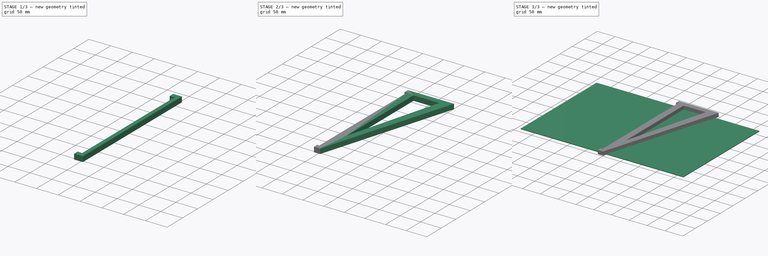
[diagram: build sequence overview — one tinted view per stage of 3, left to right]
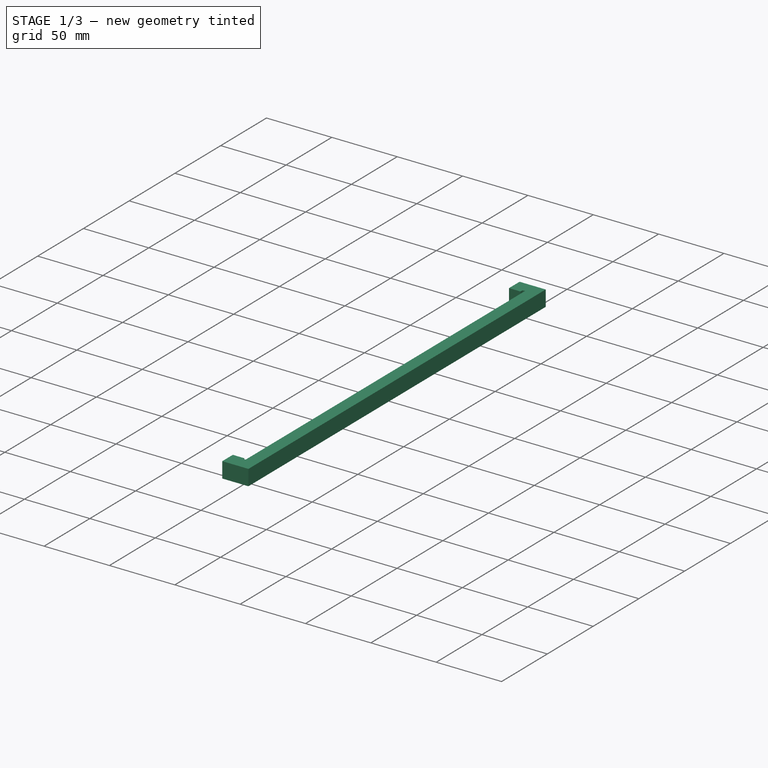
[diagram: stage 1 of 3 — iso view after this stage's code; geometry added in this stage tinted green]
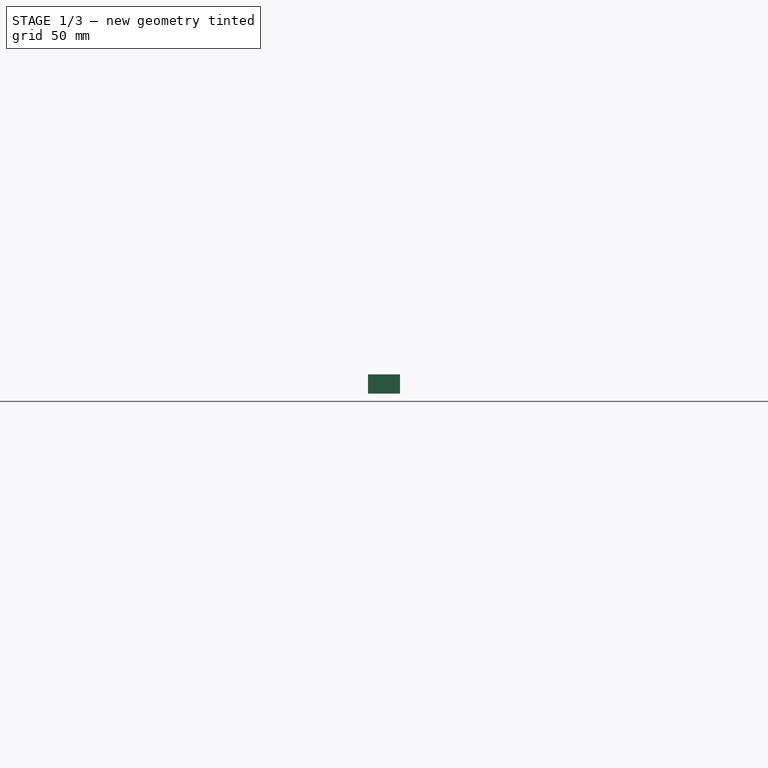
[diagram: stage 1 of 3 — front view after this stage's code; geometry added in this stage tinted green]
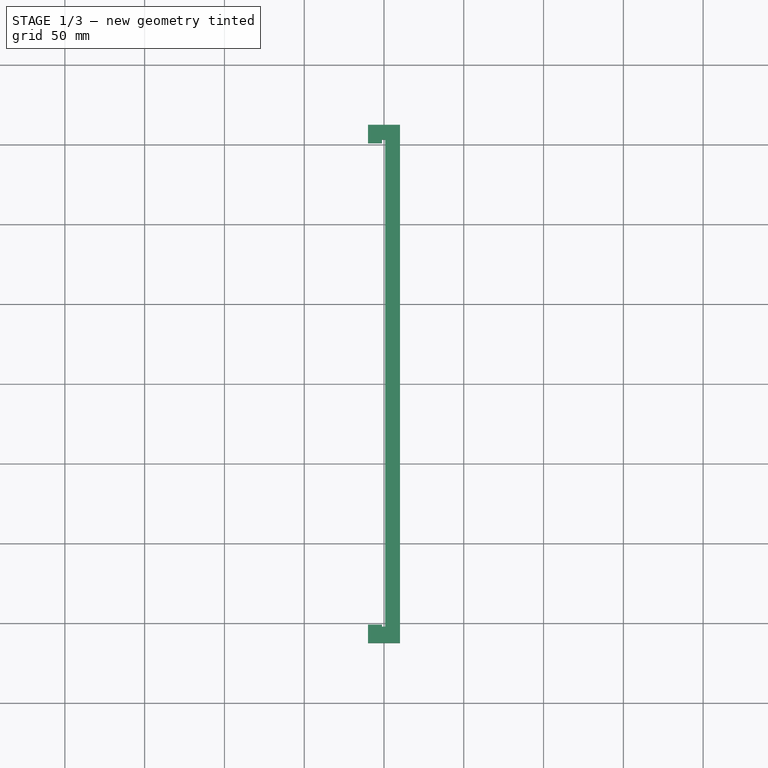
[diagram: stage 1 of 3 — top view after this stage's code; geometry added in this stage tinted green]
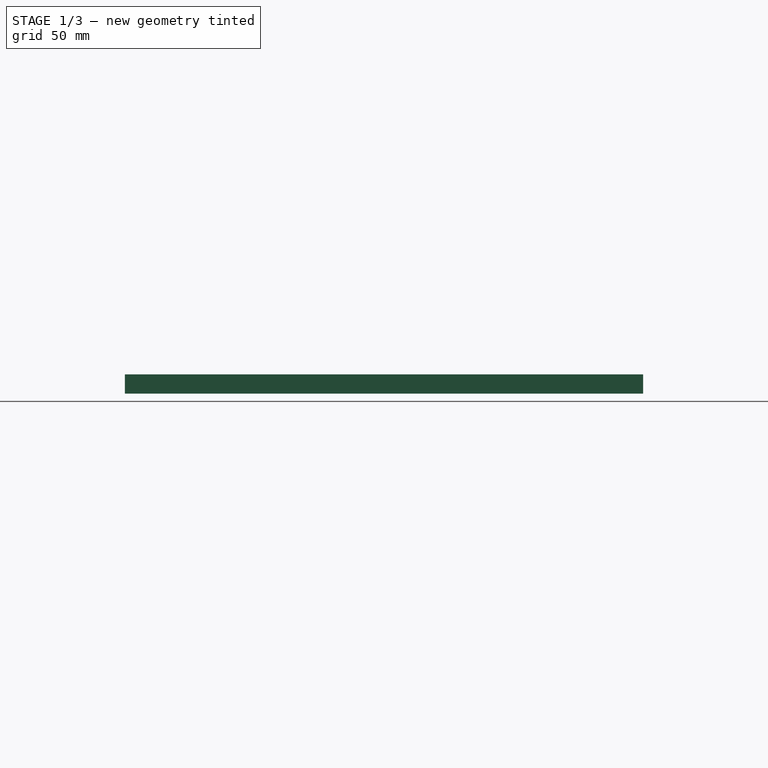
[diagram: stage 1 of 3 — right view after this stage's code; geometry added in this stage tinted green]
FCSTD DOCUMENT  (FreeCAD 1.0R39109 (Git))
Label: cad-support-metal
License: All rights reserved
LicenseURL: https://en.wikipedia.org/wiki/All_rights_reserved
objects: Sketcher::SketchObject×7, PartDesign::Pad×3, PartDesign::Pocket×3, PartDesign::Body×2, Spreadsheet::Sheet×1, PartDesign::Hole×1, PartDesign::Fillet×1
note: 40 computed .brp shape members not serialized (recipe doc carries the construction recipe); baked Part::Feature solids carry a one-line shape summary decoded from their .brp

FEATURE [PartDesign::Body] Body  label="Body-feuillemetal"
  AllowCompound = false
  Group = -> [Sketch,Pad]
  Origin = -> Origin
  Tip = -> Pad
FEATURE [Sketcher::SketchObject] Sketch001
  ArcFitTolerance = 1e-06
  AttachmentSupport = -> [XY_Plane001]
  FullyConstrained = true
  MakeInternals = false
  MapMode = 5
  expr: Constraints[10] = Spreadsheet.support_x
  expr: Constraints[11] = Spreadsheet.support_y
  sketch-geometry (5):
    g0: LineSegment StartX=-10 StartY=-162.4 StartZ=0 EndX=10 EndY=-162.4 EndZ=0
    g1: LineSegment StartX=10 StartY=-162.4 StartZ=0 EndX=10 EndY=162.4 EndZ=0
    g2: LineSegment StartX=10 StartY=162.4 StartZ=0 EndX=-10 EndY=162.4 EndZ=0
    g3: LineSegment StartX=-10 StartY=162.4 StartZ=0 EndX=-10 EndY=-162.4 EndZ=0
    g4: GeomPoint [constr] X=0 Y=0 Z=0
  constraints (12):
    c: Coincident(g0,g1)
    c: Coincident(g1,g2)
    c: Coincident(g2,g3)
    c: Coincident(g3,g0)
    c: Horizontal(g0)
    c: Horizontal(g2)
    c: Vertical(g1)
    c: Vertical(g3)
    c: Symmetric(g2,g0,g4)
    c: Coincident(g4,g-1)
    c: DistanceX(g2,g2) = 20
    c: DistanceY(g3,g3) = 324.8
FEATURE [PartDesign::Pad] Pad001
  Direction = (0,0,1)
  Length = 12
  Length2 = 10
  Profile = -> Sketch001
  ReferenceAxis = -> Sketch001 [N_Axis]
  Refine = true
  Suppressed = false
  Type = 0
  expr: Length = Spreadsheet.support_z_1
FEATURE [Sketcher::SketchObject] Sketch002
  ArcFitTolerance = 1e-06
  AttachmentSupport = -> [XY_Plane001]
  FullyConstrained = false
  MakeInternals = false
  MapMode = 5
  expr: Constraints[10] = Spreadsheet.metal_z + 0.2 mm
  expr: Constraints[9] = Spreadsheet.metal_y + 0.5 mm
  sketch-geometry (5):
    g0: LineSegment StartX=-1.21803 StartY=-152.16 StartZ=0 EndX=0.681973 EndY=-152.16 EndZ=0
    g1: LineSegment StartX=0.681973 StartY=-152.16 StartZ=0 EndX=0.681973 EndY=153.14 EndZ=0
    g2: LineSegment StartX=0.681973 StartY=153.14 StartZ=0 EndX=-1.21803 EndY=153.14 EndZ=0
    g3: LineSegment StartX=-1.21803 StartY=153.14 StartZ=0 EndX=-1.21803 EndY=-152.16 EndZ=0
    g4: GeomPoint [constr] X=-0.268027 Y=0.490328 Z=0
  constraints (11):
    c: Coincident(g0,g1)
    c: Coincident(g1,g2)
    c: Coincident(g2,g3)
    c: Coincident(g3,g0)
    c: Horizontal(g0)
    c: Horizontal(g2)
    c: Vertical(g1)
    c: Vertical(g3)
    c: Symmetric(g2,g0,g4)
    c: DistanceY(g3,g3) = 305.3
    c: DistanceX(g2,g2) = 1.9
FEATURE [PartDesign::Pocket] Pocket
  BaseFeature = -> Pad001
  Direction = (0,0,-1)
  Length = 26
  Length2 = 5
  Midplane = true
  Profile = -> Sketch002
  ReferenceAxis = -> Sketch002 [N_Axis]
  Refine = true
  Suppressed = false
  Type = 0
  expr: Length = Spreadsheet.support_x + 6 mm
FEATURE [Sketcher::SketchObject] Sketch003
  ArcFitTolerance = 1e-06
  AttachmentSupport = -> [YZ_Plane001]
  FullyConstrained = true
  MakeInternals = false
  MapMode = 5
  Placement = pos=(0,0,0) rot=(0.57735,0.57735,0.57735;2.0944rad)
  expr: Constraints[10] = Spreadsheet.metal_y - 3 mm
  expr: Constraints[11] = Spreadsheet.support_x * 2
  sketch-geometry (5):
    g0: LineSegment StartX=-150.9 StartY=-20 StartZ=0 EndX=150.9 EndY=-20 EndZ=0
    g1: LineSegment StartX=150.9 StartY=-20 StartZ=0 EndX=150.9 EndY=20 EndZ=0
    g2: LineSegment StartX=150.9 StartY=20 StartZ=0 EndX=-150.9 EndY=20 EndZ=0
    g3: LineSegment StartX=-150.9 StartY=20 StartZ=0 EndX=-150.9 EndY=-20 EndZ=0
    g4: GeomPoint [constr] X=0 Y=0 Z=0
  constraints (12):
    c: Coincident(g0,g1)
    c: Coincident(g1,g2)
    c: Coincident(g2,g3)
    c: Coincident(g3,g0)
    c: Horizontal(g0)
    c: Horizontal(g2)
    c: Vertical(g1)
    c: Vertical(g3)
    c: Symmetric(g2,g0,g4)
    c: Coincident(g4,g-1)
    c: DistanceX(g2,g2) = 301.8
    c: DistanceY(g3,g3) = 40
FEATURE [PartDesign::Pocket] Pocket001
  BaseFeature = -> Pocket
  Direction = (-1,0,0)
  Length = 17
  Length2 = 5
  Profile = -> Sketch003
  ReferenceAxis = -> Sketch003 [N_Axis]
  Refine = true
  Suppressed = false
  Type = 0
  expr: Length = Spreadsheet.support_z_1 + 5 mm
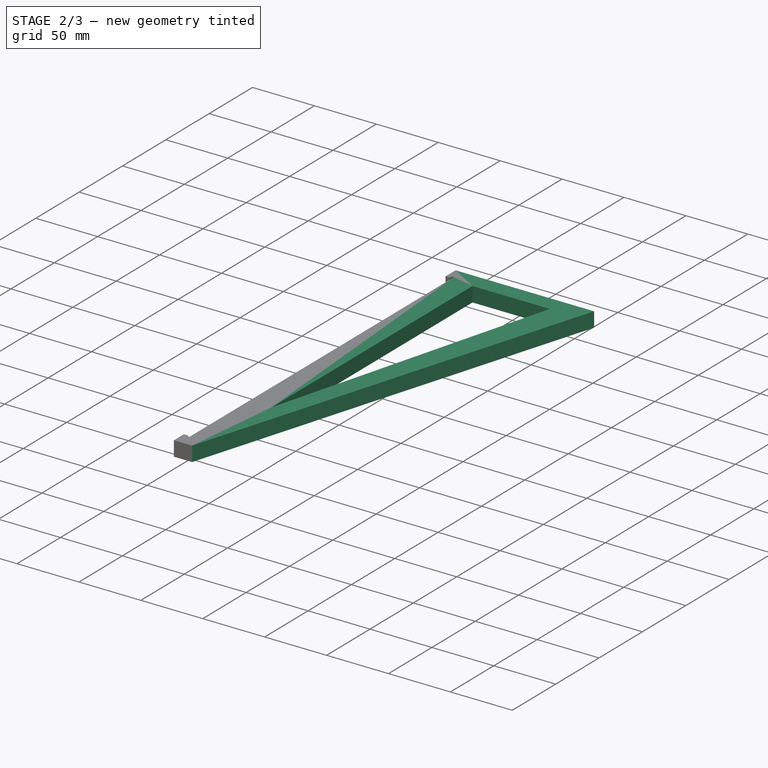
[diagram: stage 2 of 3 — iso view after this stage's code; geometry added in this stage tinted green]
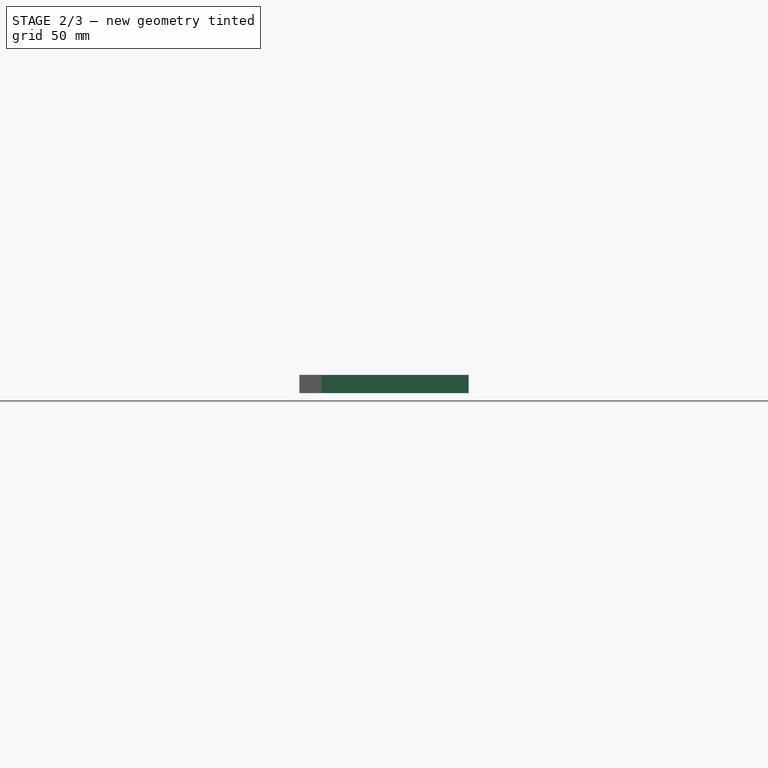
[diagram: stage 2 of 3 — front view after this stage's code; geometry added in this stage tinted green]
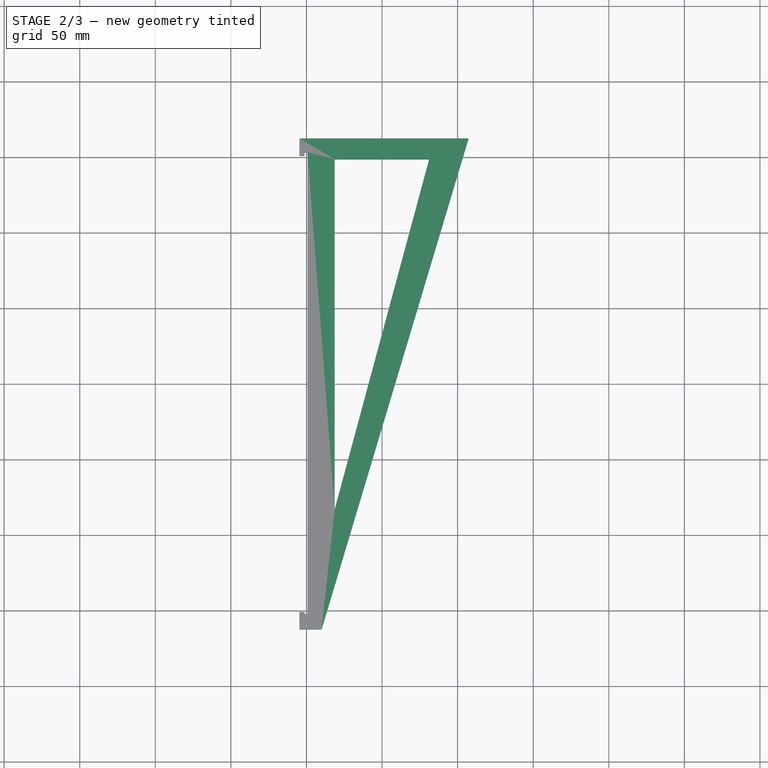
[diagram: stage 2 of 3 — top view after this stage's code; geometry added in this stage tinted green]
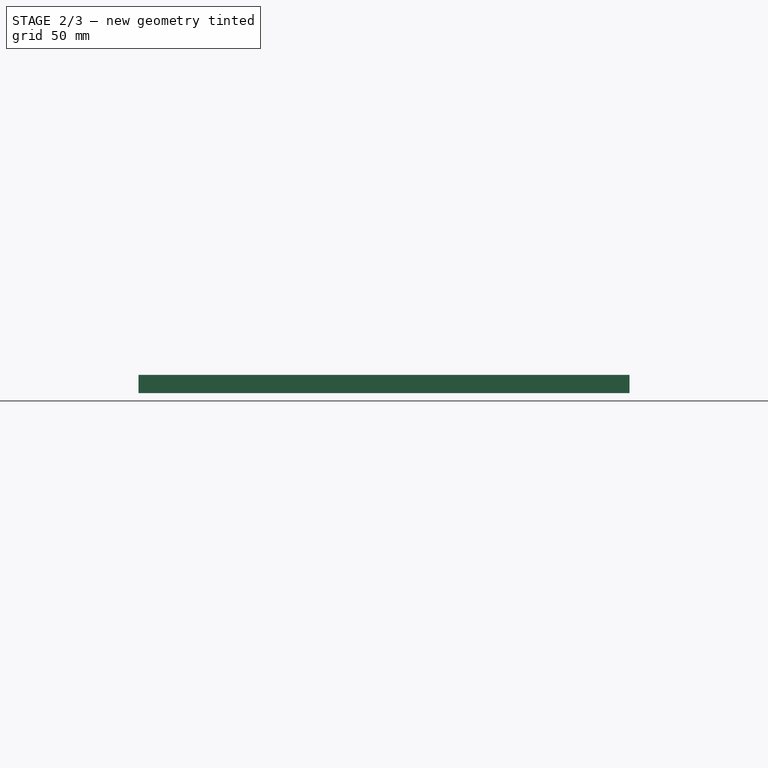
[diagram: stage 2 of 3 — right view after this stage's code; geometry added in this stage tinted green]
FEATURE [Sketcher::SketchObject] Sketch004
  ArcFitTolerance = 1e-06
  AttachmentSupport = -> [XY_Plane001]
  FullyConstrained = false
  MakeInternals = false
  MapMode = 5
  sketch-geometry (5):
    g0: LineSegment StartX=-4.6674 StartY=-176.687 StartZ=0 EndX=-4.6674 EndY=176.687 EndZ=0
    g1: LineSegment StartX=-4.6674 StartY=176.687 StartZ=0 EndX=-16.3256 EndY=176.687 EndZ=0
    g2: LineSegment StartX=-16.3256 StartY=176.687 StartZ=0 EndX=-16.3256 EndY=-176.687 EndZ=0
    g3: LineSegment StartX=-16.3256 StartY=-176.687 StartZ=0 EndX=-4.6674 EndY=-176.687 EndZ=0
    g4: GeomPoint [constr] X=-10.4965 Y=0 Z=0
  constraints (10):
    c: Coincident(g0,g1)
    c: Coincident(g1,g2)
    c: Coincident(g2,g3)
    c: Coincident(g3,g0)
    c: Vertical(g0)
    c: Vertical(g2)
    c: Horizontal(g1)
    c: Horizontal(g3)
    c: Symmetric(g2,g0,g4)
    c: PointOnObject(g4,g-1)
FEATURE [PartDesign::Pocket] Pocket002
  BaseFeature = -> Pocket001
  Direction = (0,0,-1)
  Length = 30
  Length2 = 5
  Midplane = true
  Profile = -> Sketch004
  ReferenceAxis = -> Sketch004 [N_Axis]
  Refine = true
  Suppressed = false
  Type = 0
FEATURE [Sketcher::SketchObject] Sketch005
  ArcFitTolerance = 1e-06
  AttachmentSupport = -> [XY_Plane001]
  ExternalGeometry = -> [Sketch001]
  FullyConstrained = false
  MakeInternals = false
  MapMode = 5
  expr: Constraints[12] = Spreadsheet.plaque_trous_distance_y + 80 mm
  expr: Constraints[4] = Spreadsheet.metal_y + 20 mm
  sketch-geometry (6):
    g0: LineSegment StartX=10 StartY=-162.4 StartZ=0 EndX=107.238 EndY=162.4 EndZ=0
    g1: LineSegment StartX=107.238 StartY=162.4 StartZ=0 EndX=10 EndY=162.4 EndZ=0
    g2: LineSegment StartX=10 StartY=162.4 StartZ=0 EndX=10 EndY=-162.4 EndZ=0
    g3: LineSegment StartX=18.6497 StartY=148.665 StartZ=0 EndX=81.1716 EndY=148.665 EndZ=0
    g4: LineSegment StartX=81.1716 StartY=148.665 StartZ=0 EndX=18.6497 EndY=-83.0481 EndZ=0
    g5: LineSegment StartX=18.6497 StartY=-83.0481 StartZ=0 EndX=18.6497 EndY=148.665 EndZ=0
  constraints (14):
    c: Coincident(g0,g1)
    c: Horizontal(g1)
    c: Coincident(g1,g2)
    c: Coincident(g2,g0)
    c: DistanceY(g2,g2) = 324.8
    c: Vertical(g2)
    c: DistanceX(g-1,g0) = 10
    c: Horizontal(g3)
    c: Coincident(g3,g4)
    c: Coincident(g4,g5)
    c: Coincident(g5,g3)
    c: Vertical(g5)
    c: Distance(g4) = 240
    c: Horizontal(g1,g-3)
FEATURE [PartDesign::Pad] Pad002
  BaseFeature = -> Pocket002
  Direction = (0,0,1)
  Length = 12
  Length2 = 10
  Profile = -> Sketch005
  ReferenceAxis = -> Sketch005 [N_Axis]
  Refine = true
  Suppressed = false
  Type = 0
  expr: Length = Spreadsheet.support_z_1
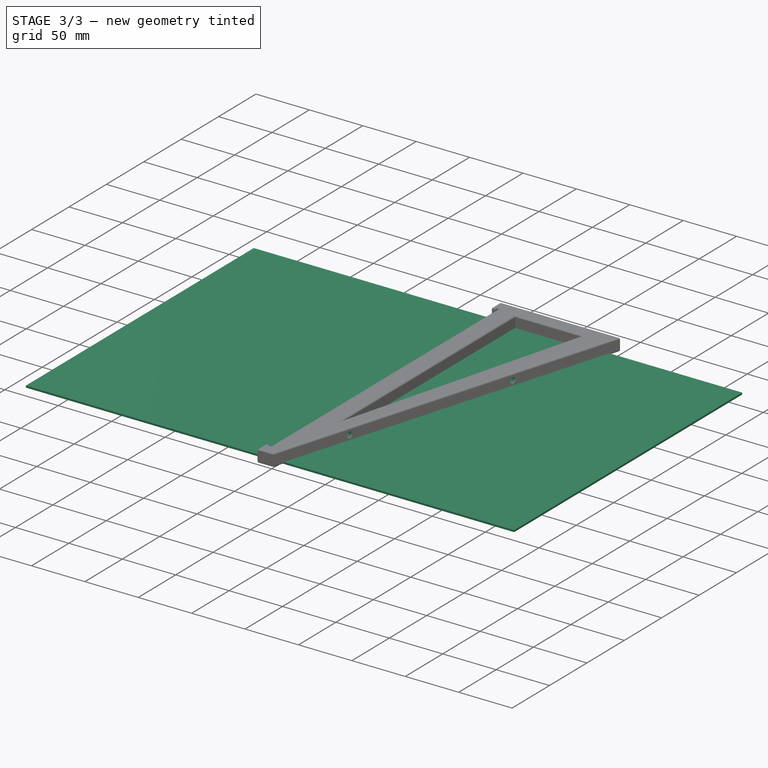
[diagram: stage 3 of 3 — iso view after this stage's code; geometry added in this stage tinted green]
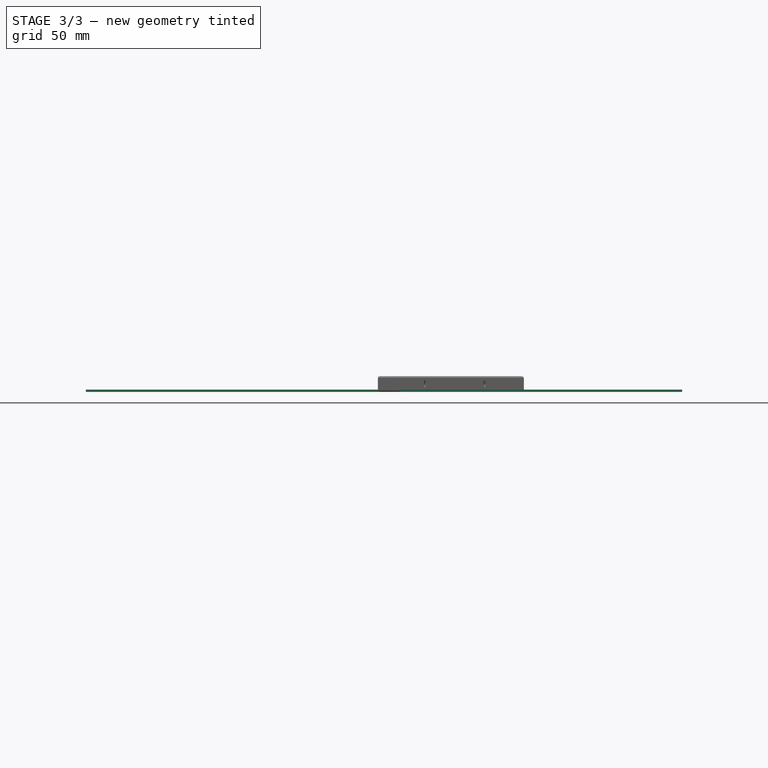
[diagram: stage 3 of 3 — front view after this stage's code; geometry added in this stage tinted green]
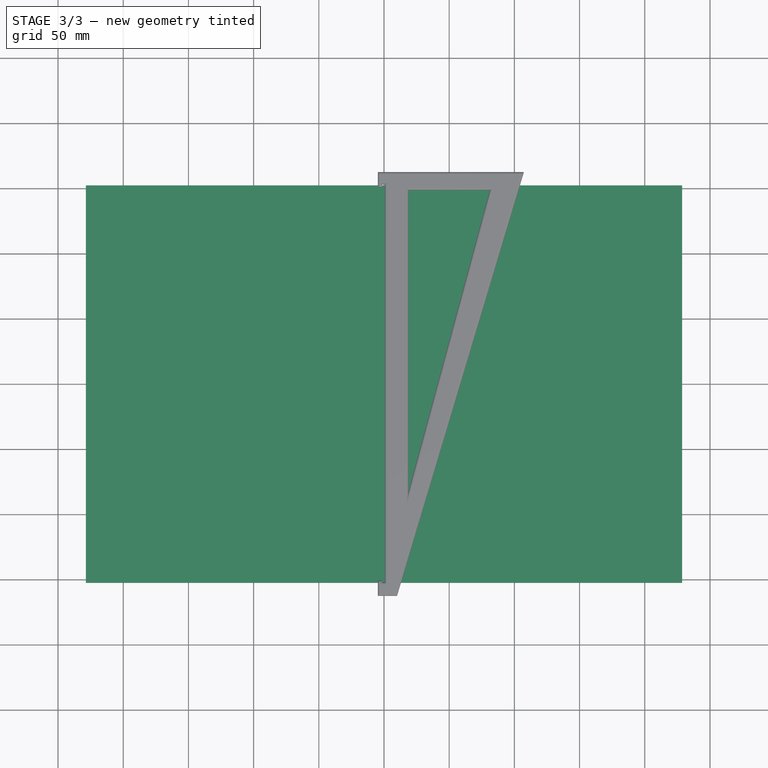
[diagram: stage 3 of 3 — top view after this stage's code; geometry added in this stage tinted green]
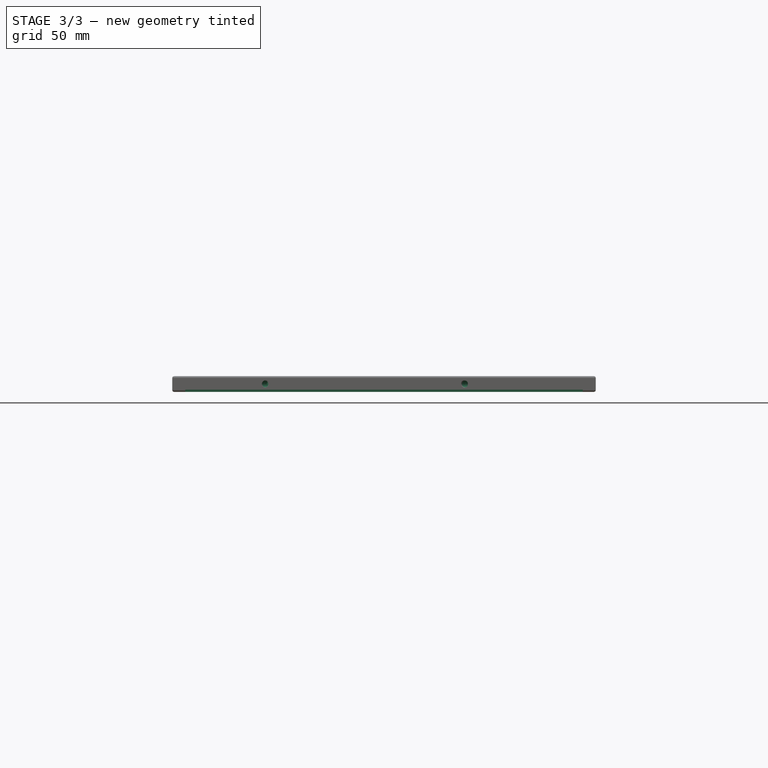
[diagram: stage 3 of 3 — right view after this stage's code; geometry added in this stage tinted green]
FEATURE [Spreadsheet::Sheet] Spreadsheet
  cells = A2(metal_x)==18 "; B2='metal_x; A3(metal_y)==12 "; B3='metal_y; A4(metal_z)==1.7 mm; B4='metal_z; A6(support_x)==20 mm; B6='support_x; A7(support_y)==metal_y + 20 mm; B7='support_y; A8(support_z_1)==12 mm; B8='support_z_1; A9(support_z_2)==50 mm; B9='support_z_2; A11(plaque_trous_distance_x)==200 mm; B11='plaque_trous_distance_x; A12(plaque_trous_distance_y)==160 mm; B12='plaque_trous_distance_y
FEATURE [Sketcher::SketchObject] Sketch
  ArcFitTolerance = 1e-06
  AttachmentSupport = -> [XY_Plane]
  FullyConstrained = true
  MakeInternals = false
  MapMode = 5
  expr: Constraints[10] = Spreadsheet.metal_x
  expr: Constraints[11] = Spreadsheet.metal_y
  sketch-geometry (5):
    g0: LineSegment StartX=-228.6 StartY=-152.4 StartZ=0 EndX=228.6 EndY=-152.4 EndZ=0
    g1: LineSegment StartX=228.6 StartY=-152.4 StartZ=0 EndX=228.6 EndY=152.4 EndZ=0
    g2: LineSegment StartX=228.6 StartY=152.4 StartZ=0 EndX=-228.6 EndY=152.4 EndZ=0
    g3: LineSegment StartX=-228.6 StartY=152.4 StartZ=0 EndX=-228.6 EndY=-152.4 EndZ=0
    g4: GeomPoint [constr] X=-1e-16 Y=4e-16 Z=0
  constraints (12):
    c: Coincident(g0,g1)
    c: Coincident(g1,g2)
    c: Coincident(g2,g3)
    c: Coincident(g3,g0)
    c: Horizontal(g0)
    c: Horizontal(g2)
    c: Vertical(g1)
    c: Vertical(g3)
    c: Symmetric(g2,g0,g4)
    c: Coincident(g4,g-1)
    c: DistanceX(g0,g0) = 457.2
    c: DistanceY(g3,g3) = 304.8
FEATURE [PartDesign::Pad] Pad
  Direction = (0,0,1)
  Length = 1.7
  Length2 = 10
  Profile = -> Sketch
  ReferenceAxis = -> Sketch [N_Axis]
  Refine = true
  Suppressed = false
  Type = 0
  expr: Length = Spreadsheet.metal_z
FEATURE [Sketcher::SketchObject] Sketch006
  ArcFitTolerance = 1e-06
  AttachmentOffset = pos=(0,6,0) rot=(0,0,1;0rad)
  AttachmentSupport = -> [Pad002]
  FullyConstrained = false
  MakeInternals = false
  MapMode = 5
  Placement = pos=(38.2718,-10.3267,6) rot=(-0.476238,0.621771,0.621771;4.03051rad)
  expr: .AttachmentOffset.Base.y = Spreadsheet.support_z_1 / 2
  expr: Constraints[2] = Spreadsheet.plaque_trous_distance_y
  expr: Constraints[3] = Spreadsheet.plaque_trous_distance_y / 2
  sketch-geometry (2):
    g0: Circle CenterX=-80 CenterY=0 CenterZ=0 NormalX=0 NormalY=0 NormalZ=1 AngleXU=0 Radius=3
    g1: Circle CenterX=80 CenterY=0 CenterZ=0 NormalX=0 NormalY=0 NormalZ=1 AngleXU=0 Radius=3
  constraints (4):
    c: Diameter(g1) = 6
    c: Diameter(g0) = 6
    c: DistanceX(g0,g1) = 160
    c: DistanceX(g0,g-1) = 80
FEATURE [PartDesign::Hole] Hole
  BaseFeature = -> Pad002
  CustomThreadClearance = 0
  Depth = 25
  DepthType = 0
  Diameter = 5.1
  DrillForDepth = false
  DrillPoint = 1
  DrillPointAngle = 118
  HoleCutCountersinkAngle = 90
  HoleCutCustomValues = false
  HoleCutDepth = 0
  HoleCutDiameter = 6.1
  HoleCutType = 0
  ModelThread = true
  Profile = -> Sketch006
  Refine = true
  Suppressed = false
  Tapered = false
  TaperedAngle = 90
  ThreadClass = 0
  ThreadDepth = 25
  ThreadDepthType = 0
  ThreadDirection = 0
  ThreadFit = 0
  ThreadSize = 9
  ThreadType = 3
  Threaded = true
  UseCustomThreadClearance = false
FEATURE [PartDesign::Fillet] Fillet
  Base = -> Hole [Face4,Face2]
  BaseFeature = -> Hole
  Radius = 1.5
  Refine = true
  SupportTransform = false
  Suppressed = false
  UseAllEdges = false
FEATURE [PartDesign::Body] Body001  label="Body-supportMetal"
  AllowCompound = false
  Group = -> [Sketch001,Pad001,Sketch002,Pocket,Sketch003,Pocket001,Sketch004,Pocket002,Sketch005,Pad002,Sketch006,Hole,Fillet]
  Origin = -> Origin001
  Tip = -> Fillet
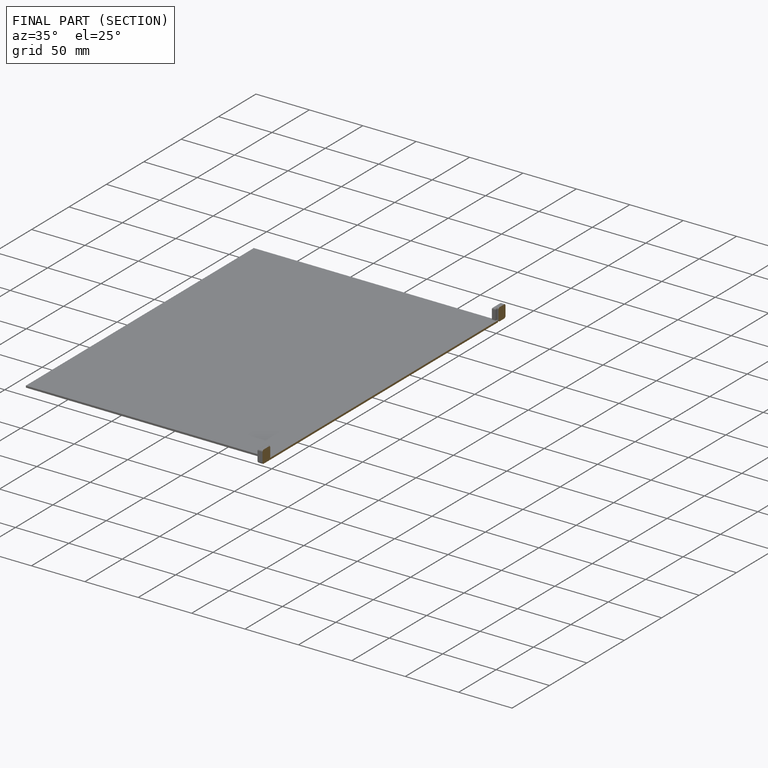
[diagram: finished part — half-section view (interior)]
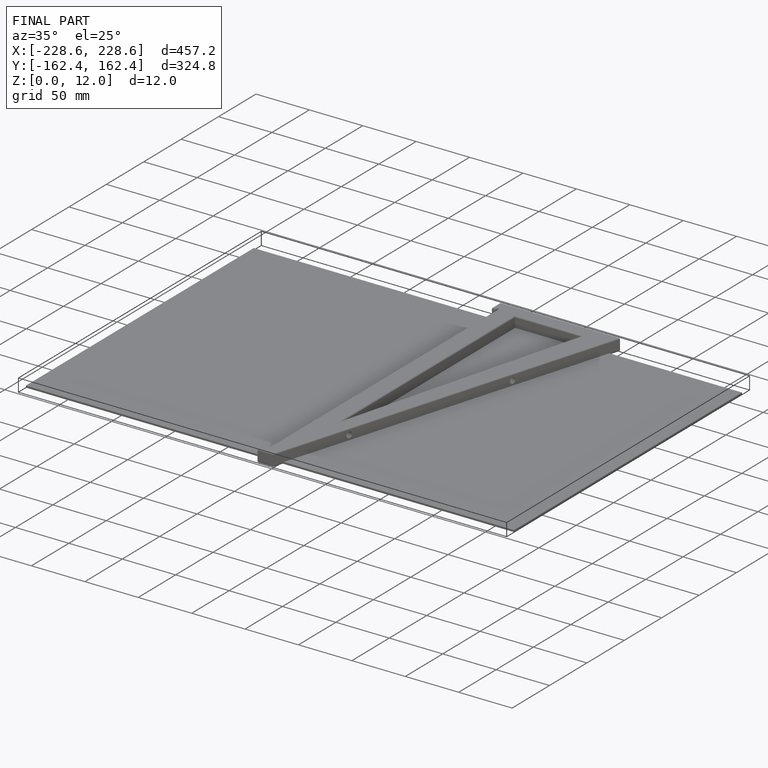
[diagram: finished part — iso view with bounding-box wireframe]
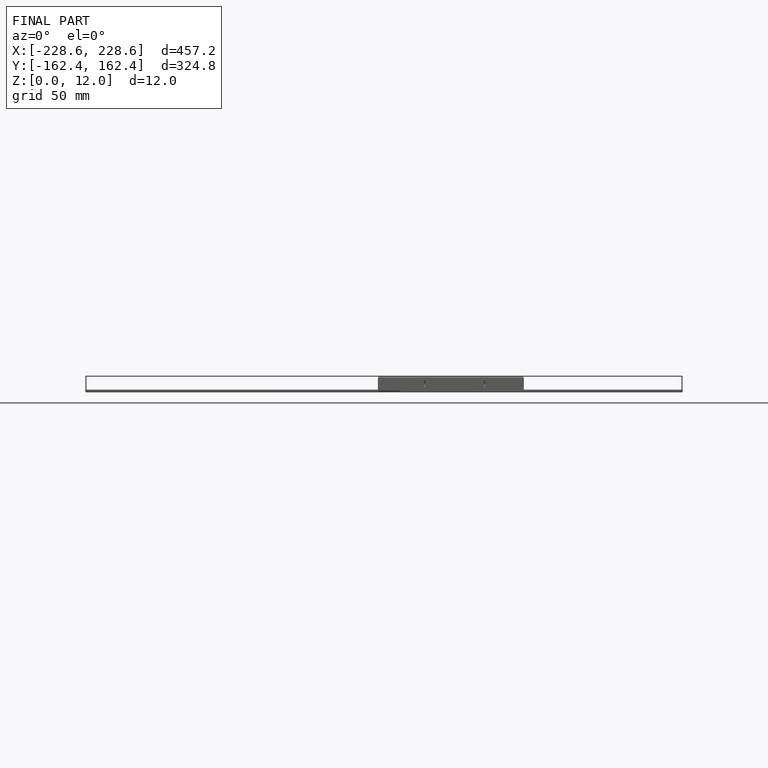
[diagram: finished part — front view with bounding-box wireframe]
